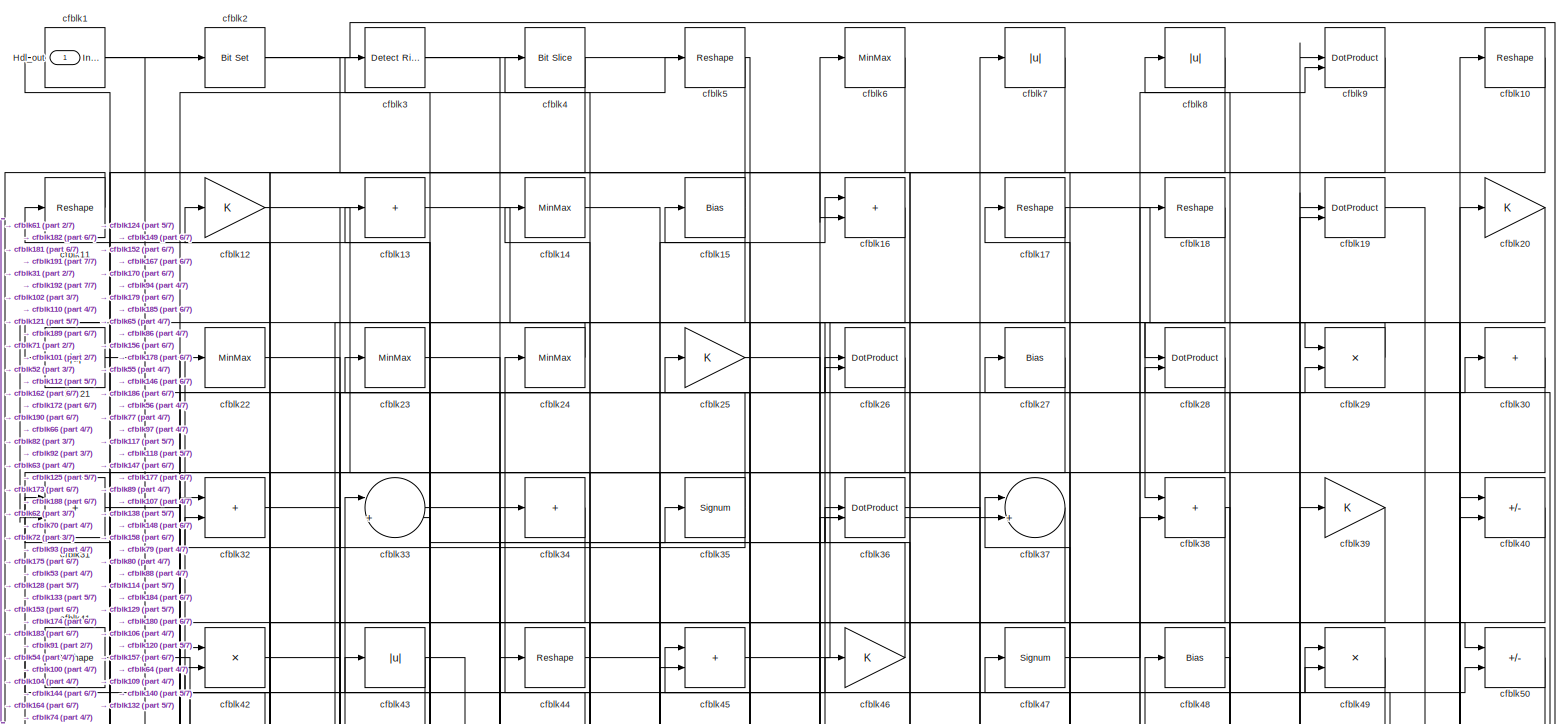
[diagram: root canvas - part 1/7, full width, top band]
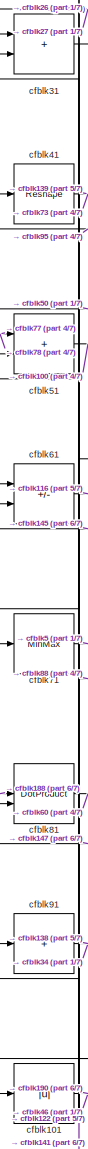
[diagram: root canvas - part 2/7, middle left region]
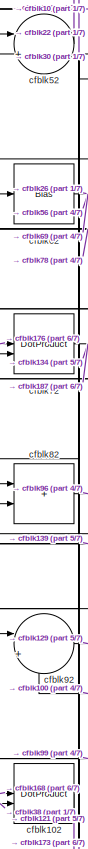
[diagram: root canvas - part 3/7, middle left region]
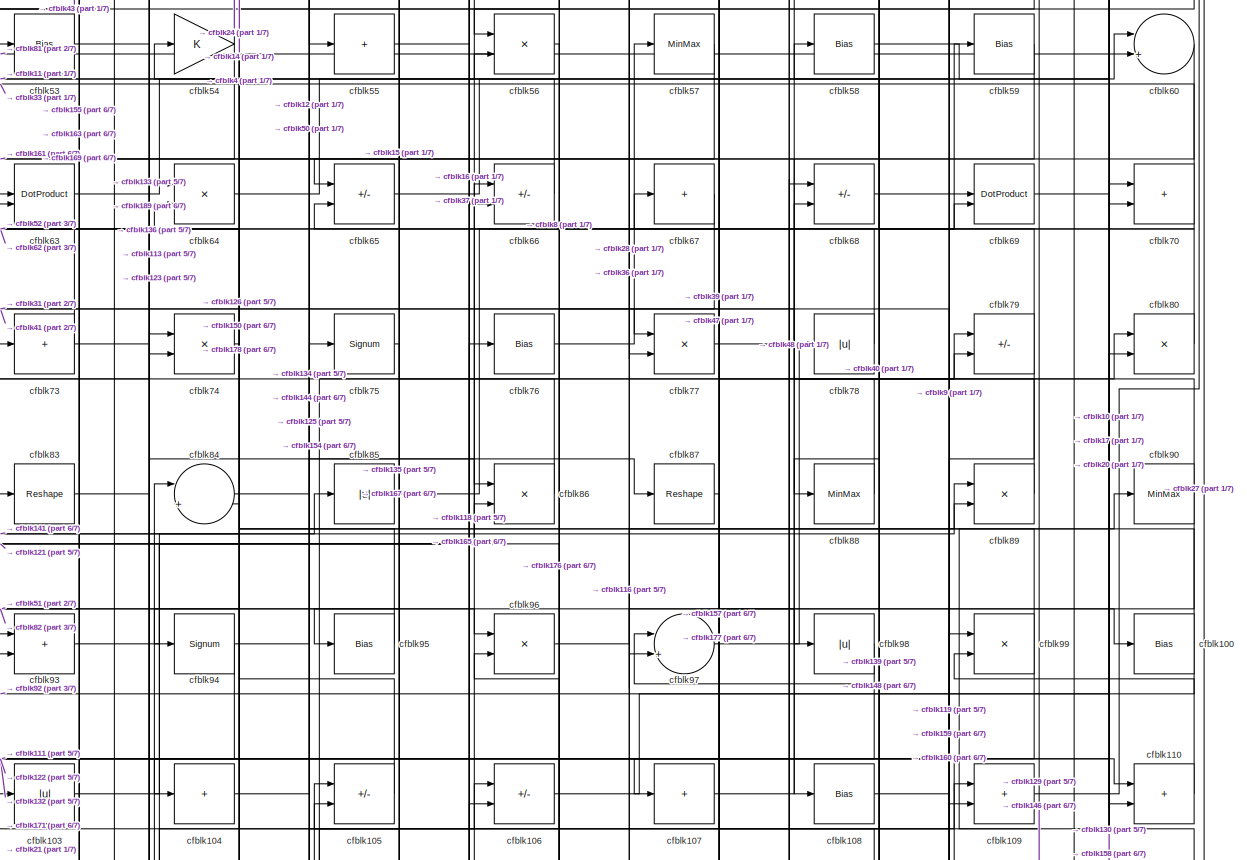
[diagram: root canvas - part 4/7, full width, middle band]
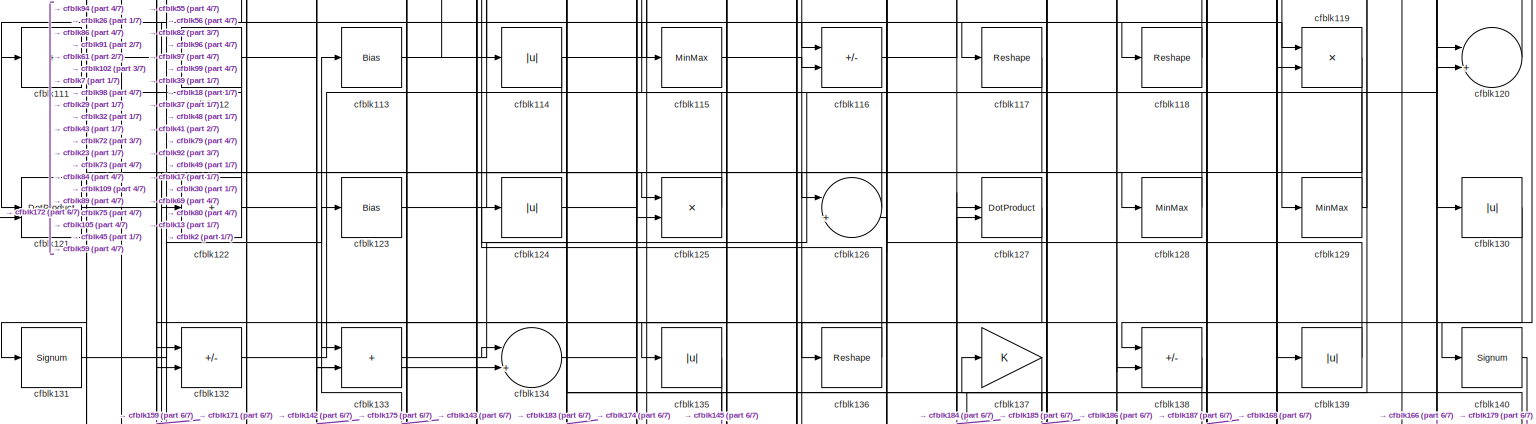
[diagram: root canvas - part 5/7, full width, middle band]
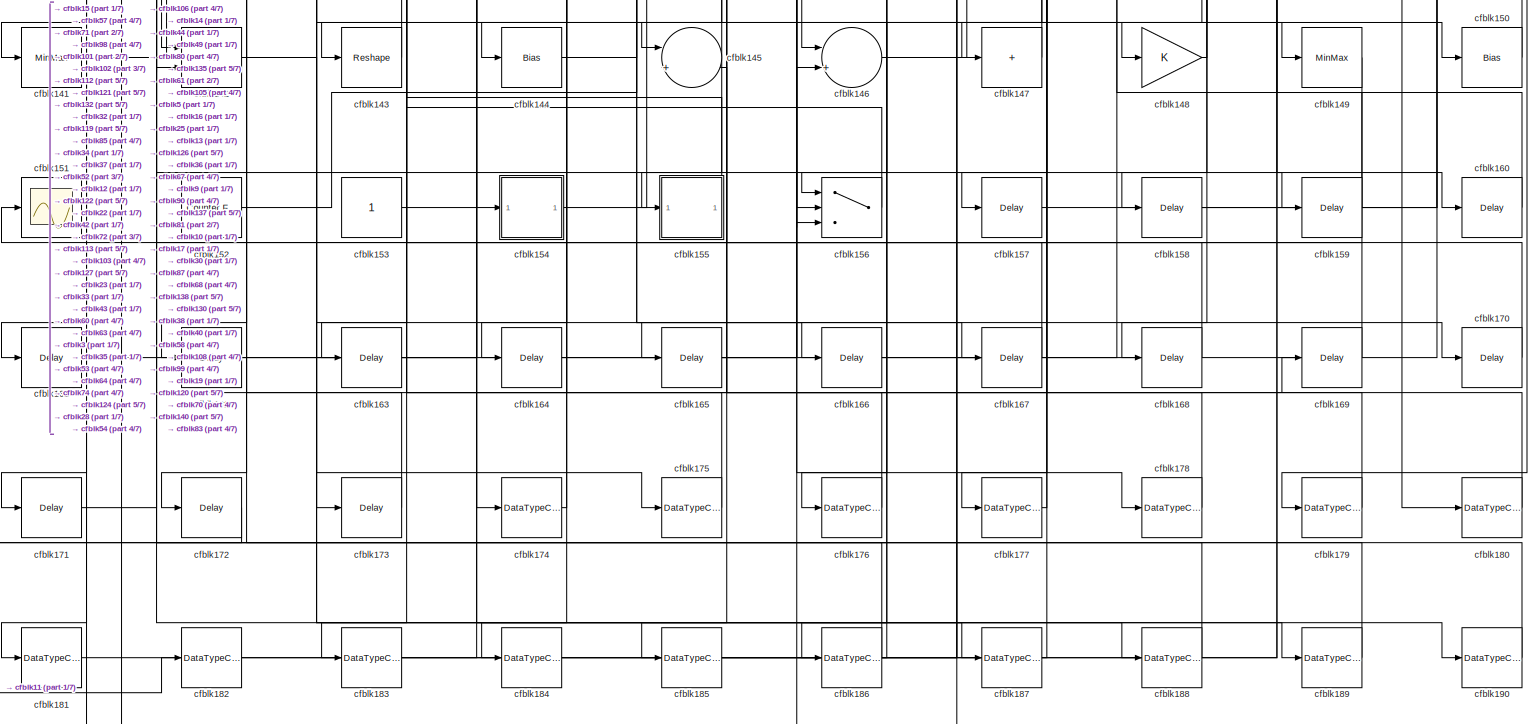
[diagram: root canvas - part 6/7, full width, bottom band]
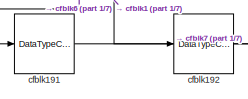
[diagram: root canvas - part 7/7, bottom left region]
MODEL slx_e7036787bcf7
KIND model
CONFIG AbsTol = auto
CONFIG EnableMultiTasking = off
CONFIG FixedStep = auto
CONFIG MaxStep = auto
CONFIG MinStep = auto
CONFIG RelTol = 1e-3
CONFIG SampleTimeConstraint = Unconstrained
CONFIG SolverName = VariableStepAuto
CONFIG StartTime = 0.0
CONFIG StopTime = 10.0
BLOCK [Outport] Hdl_out
  OutDataTypeStr = uint8
BLOCK [Reference] cfblk1  REF=simulink/Logic and Bit
Operations/Detect
Increase
  LibrarySourceBlock = hdlsllib/Logic and Bit\nOperations/Detect\nIncrease
  SourceBlock = simulink/Logic and Bit\nOperations/Detect\nIncrease
  SourceType = Detect Increase
BLOCK [Reshape] cfblk10
BLOCK [Bias] cfblk100
  Bias = 0.0
  SaturateOnIntegerOverflow = off
BLOCK [Abs] cfblk101
  OutDataTypeStr = uint8
  SaturateOnIntegerOverflow = off
BLOCK [DotProduct] cfblk102
  OutDataTypeStr = uint8
BLOCK [Abs] cfblk103
  OutDataTypeStr = uint8
  SaturateOnIntegerOverflow = off
BLOCK [Sum] cfblk104
  IconShape = rectangular
  Inputs = +
  OutDataTypeStr = uint8
BLOCK [Sum] cfblk105
  IconShape = rectangular
  Inputs = +-
  OutDataTypeStr = uint8
BLOCK [Sum] cfblk106
  IconShape = rectangular
  Inputs = +-
  OutDataTypeStr = uint8
BLOCK [Sum] cfblk107
  IconShape = rectangular
  Inputs = +
  OutDataTypeStr = uint8
BLOCK [Bias] cfblk108
  Bias = 0.0
  SaturateOnIntegerOverflow = off
BLOCK [Sum] cfblk109
  IconShape = rectangular
  OutDataTypeStr = uint8
BLOCK [Reshape] cfblk11
BLOCK [Sum] cfblk110
  IconShape = rectangular
  OutDataTypeStr = uint8
BLOCK [Sum] cfblk111
  IconShape = rectangular
  Inputs = +
  OutDataTypeStr = uint8
BLOCK [Sum] cfblk112
  IconShape = rectangular
  Inputs = +
  OutDataTypeStr = uint8
BLOCK [Bias] cfblk113
  Bias = 0.0
  SaturateOnIntegerOverflow = off
BLOCK [Abs] cfblk114
  OutDataTypeStr = uint8
  SaturateOnIntegerOverflow = off
BLOCK [MinMax] cfblk115
  OutDataTypeStr = uint8
BLOCK [Sum] cfblk116
  IconShape = rectangular
  Inputs = +-
  OutDataTypeStr = uint8
BLOCK [Reshape] cfblk117
BLOCK [Reshape] cfblk118
BLOCK [Product] cfblk119
  Inputs = */
  OutDataTypeStr = uint8
  RndMeth = Zero
  SaturateOnIntegerOverflow = on
BLOCK [Gain] cfblk12
  OutDataTypeStr = uint8
BLOCK [Sum] cfblk120
  Inputs = |++
  OutDataTypeStr = uint8
BLOCK [DotProduct] cfblk121
  OutDataTypeStr = uint8
BLOCK [Sum] cfblk122
  IconShape = rectangular
  Inputs = +
  OutDataTypeStr = uint8
BLOCK [Bias] cfblk123
  Bias = 0.0
  SaturateOnIntegerOverflow = off
BLOCK [Abs] cfblk124
  OutDataTypeStr = uint8
  SaturateOnIntegerOverflow = off
BLOCK [Product] cfblk125
  Inputs = */
  OutDataTypeStr = uint8
  RndMeth = Zero
  SaturateOnIntegerOverflow = on
BLOCK [Sum] cfblk126
  Inputs = |++
  OutDataTypeStr = uint8
BLOCK [DotProduct] cfblk127
  OutDataTypeStr = uint8
BLOCK [MinMax] cfblk128
  OutDataTypeStr = uint8
BLOCK [MinMax] cfblk129
  OutDataTypeStr = uint8
BLOCK [Sum] cfblk13
  IconShape = rectangular
  Inputs = +
  OutDataTypeStr = uint8
BLOCK [Abs] cfblk130
  OutDataTypeStr = uint8
  SaturateOnIntegerOverflow = off
BLOCK [Signum] cfblk131
BLOCK [Sum] cfblk132
  IconShape = rectangular
  Inputs = +-
  OutDataTypeStr = uint8
BLOCK [Sum] cfblk133
  IconShape = rectangular
  OutDataTypeStr = uint8
BLOCK [Sum] cfblk134
  Inputs = |++
  OutDataTypeStr = uint8
BLOCK [Abs] cfblk135
  OutDataTypeStr = uint8
  SaturateOnIntegerOverflow = off
BLOCK [Reshape] cfblk136
BLOCK [Gain] cfblk137
  OutDataTypeStr = uint8
BLOCK [Sum] cfblk138
  IconShape = rectangular
  Inputs = +-
  OutDataTypeStr = uint8
BLOCK [Abs] cfblk139
  OutDataTypeStr = uint8
  SaturateOnIntegerOverflow = off
BLOCK [MinMax] cfblk14
  OutDataTypeStr = uint8
BLOCK [Signum] cfblk140
BLOCK [MinMax] cfblk141
  OutDataTypeStr = uint8
BLOCK [Product] cfblk142
  Inputs = */
  OutDataTypeStr = uint8
  RndMeth = Zero
  SaturateOnIntegerOverflow = on
BLOCK [Reshape] cfblk143
BLOCK [Bias] cfblk144
  Bias = 0.0
  SaturateOnIntegerOverflow = off
BLOCK [Sum] cfblk145
  Inputs = |++
  OutDataTypeStr = uint8
BLOCK [Sum] cfblk146
  Inputs = |++
  OutDataTypeStr = uint8
BLOCK [Sum] cfblk147
  IconShape = rectangular
  Inputs = +
  OutDataTypeStr = uint8
BLOCK [Gain] cfblk148
  OutDataTypeStr = uint8
BLOCK [MinMax] cfblk149
  OutDataTypeStr = uint8
BLOCK [Bias] cfblk15
  Bias = 0.0
  SaturateOnIntegerOverflow = off
BLOCK [Bias] cfblk150
  Bias = 0.0
  SaturateOnIntegerOverflow = off
BLOCK [Scope] cfblk151
  Floating = off
  NumInputPorts = 1
  ScopeSpecificationString = Simulink.scopes.TimeScopeBlockCfg('CurrentConfiguration', extmgr.ConfigurationSet(extmgr.Configuration('Core','General UI',true),extmgr.Configuration('Core','Source UI',true),extmgr.Configuration('Sources','WiredSimulink',true,'DataLoggingVariableName','ScopeData2','DataLoggingSaveFormat','Array','DataLoggingLimitDataPoints',true,'DataLoggingDecimation','1'),extmgr.Configuration('Visuals','Time Do...<+868ch>
BLOCK [Reference] cfblk152  REF=hdlsllib/Sources/Counter
Free-Running
  SourceBlock = hdlsllib/Sources/Counter\nFree-Running
  SourceType = Counter Free-Running
BLOCK [Constant] cfblk153
  OutDataTypeStr = uint8
  SampleTime = -1
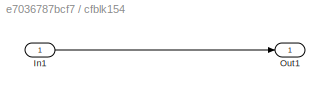
BLOCK [SubSystem] cfblk154
  LibrarySourceBlock = hdlsllib/Ports &\nSubsystems/Subsystem
BLOCK [Inport] cfblk154/In1
BLOCK [Outport] cfblk154/Out1
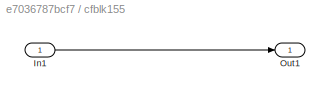
BLOCK [SubSystem] cfblk155
  LibrarySourceBlock = hdlsllib/Ports &\nSubsystems/Subsystem
BLOCK [Inport] cfblk155/In1
BLOCK [Outport] cfblk155/Out1
BLOCK [Switch] cfblk156
  InputSameDT = off
  OutDataTypeStr = uint8
  SaturateOnIntegerOverflow = off
BLOCK [Delay] cfblk157
  InputPortMap = u0
  SampleTime = 1
BLOCK [Delay] cfblk158
  InputPortMap = u0
  SampleTime = 1
BLOCK [Delay] cfblk159
  InputPortMap = u0
  SampleTime = 1
BLOCK [Sum] cfblk16
  IconShape = rectangular
  OutDataTypeStr = uint8
BLOCK [Delay] cfblk160
  InputPortMap = u0
  SampleTime = 1
BLOCK [Delay] cfblk161
  InputPortMap = u0
  SampleTime = 1
BLOCK [Delay] cfblk162
  InputPortMap = u0
  SampleTime = 1
BLOCK [Delay] cfblk163
  InputPortMap = u0
  SampleTime = 1
BLOCK [Delay] cfblk164
  InputPortMap = u0
  SampleTime = 1
BLOCK [Delay] cfblk165
  InputPortMap = u0
  SampleTime = 1
BLOCK [Delay] cfblk166
  InputPortMap = u0
  SampleTime = 1
BLOCK [Delay] cfblk167
  InputPortMap = u0
  SampleTime = 1
BLOCK [Delay] cfblk168
  InputPortMap = u0
  SampleTime = 1
BLOCK [Delay] cfblk169
  InputPortMap = u0
  SampleTime = 1
BLOCK [Reshape] cfblk17
BLOCK [Delay] cfblk170
  InputPortMap = u0
  SampleTime = 1
BLOCK [Delay] cfblk171
  InputPortMap = u0
  SampleTime = 1
BLOCK [Delay] cfblk172
  InputPortMap = u0
  SampleTime = 1
BLOCK [Delay] cfblk173
  InputPortMap = u0
  SampleTime = 1
BLOCK [DataTypeConversion] cfblk174
  OutDataTypeStr = uint8
  RndMeth = Floor
  SaturateOnIntegerOverflow = off
BLOCK [DataTypeConversion] cfblk175
  OutDataTypeStr = uint8
  RndMeth = Floor
  SaturateOnIntegerOverflow = off
BLOCK [DataTypeConversion] cfblk176
  OutDataTypeStr = uint8
  RndMeth = Floor
  SaturateOnIntegerOverflow = off
BLOCK [DataTypeConversion] cfblk177
  OutDataTypeStr = uint8
  RndMeth = Floor
  SaturateOnIntegerOverflow = off
BLOCK [DataTypeConversion] cfblk178
  OutDataTypeStr = uint8
  RndMeth = Floor
  SaturateOnIntegerOverflow = off
BLOCK [DataTypeConversion] cfblk179
  OutDataTypeStr = uint8
  RndMeth = Floor
  SaturateOnIntegerOverflow = off
BLOCK [Reshape] cfblk18
BLOCK [DataTypeConversion] cfblk180
  OutDataTypeStr = uint8
  RndMeth = Floor
  SaturateOnIntegerOverflow = off
BLOCK [DataTypeConversion] cfblk181
  OutDataTypeStr = uint8
  RndMeth = Floor
  SaturateOnIntegerOverflow = off
BLOCK [DataTypeConversion] cfblk182
  OutDataTypeStr = uint8
  RndMeth = Floor
  SaturateOnIntegerOverflow = off
BLOCK [DataTypeConversion] cfblk183
  OutDataTypeStr = uint8
  RndMeth = Floor
  SaturateOnIntegerOverflow = off
BLOCK [DataTypeConversion] cfblk184
  OutDataTypeStr = uint8
  RndMeth = Floor
  SaturateOnIntegerOverflow = off
BLOCK [DataTypeConversion] cfblk185
  OutDataTypeStr = uint8
  RndMeth = Floor
  SaturateOnIntegerOverflow = off
BLOCK [DataTypeConversion] cfblk186
  OutDataTypeStr = uint8
  RndMeth = Floor
  SaturateOnIntegerOverflow = off
BLOCK [DataTypeConversion] cfblk187
  OutDataTypeStr = uint8
  RndMeth = Floor
  SaturateOnIntegerOverflow = off
BLOCK [DataTypeConversion] cfblk188
  OutDataTypeStr = uint8
  RndMeth = Floor
  SaturateOnIntegerOverflow = off
BLOCK [DataTypeConversion] cfblk189
  OutDataTypeStr = uint8
  RndMeth = Floor
  SaturateOnIntegerOverflow = off
BLOCK [DotProduct] cfblk19
  OutDataTypeStr = uint8
BLOCK [DataTypeConversion] cfblk190
  OutDataTypeStr = uint8
  RndMeth = Floor
  SaturateOnIntegerOverflow = off
BLOCK [DataTypeConversion] cfblk191
  OutDataTypeStr = uint8
  RndMeth = Floor
  SaturateOnIntegerOverflow = off
BLOCK [DataTypeConversion] cfblk192
  OutDataTypeStr = uint8
  RndMeth = Floor
  SaturateOnIntegerOverflow = off
BLOCK [Reference] cfblk2  REF=simulink/Logic and Bit
Operations/Bit Set
  LibrarySourceBlock = hdlsllib/Logic and Bit\nOperations/Bit Set
  SourceBlock = simulink/Logic and Bit\nOperations/Bit Set
  SourceType = Bit Set
BLOCK [Gain] cfblk20
  OutDataTypeStr = uint8
BLOCK [Abs] cfblk21
  OutDataTypeStr = uint8
  SaturateOnIntegerOverflow = off
BLOCK [MinMax] cfblk22
  OutDataTypeStr = uint8
BLOCK [MinMax] cfblk23
  OutDataTypeStr = uint8
BLOCK [MinMax] cfblk24
  OutDataTypeStr = uint8
BLOCK [Gain] cfblk25
  OutDataTypeStr = uint8
BLOCK [DotProduct] cfblk26
  OutDataTypeStr = uint8
BLOCK [Bias] cfblk27
  Bias = 0.0
  SaturateOnIntegerOverflow = off
BLOCK [DotProduct] cfblk28
  OutDataTypeStr = uint8
BLOCK [Product] cfblk29
  Inputs = */
  OutDataTypeStr = uint8
  RndMeth = Zero
  SaturateOnIntegerOverflow = on
BLOCK [Reference] cfblk3  REF=hdlsllib/Logic and Bit
Operations/Detect Rise
Nonnegative
  SourceBlock = hdlsllib/Logic and Bit\nOperations/Detect Rise\nNonnegative
  SourceType = Detect Rise Nonnegative
BLOCK [Sum] cfblk30
  IconShape = rectangular
  Inputs = +
  OutDataTypeStr = uint8
BLOCK [Sum] cfblk31
  IconShape = rectangular
  OutDataTypeStr = uint8
BLOCK [Sum] cfblk32
  IconShape = rectangular
  OutDataTypeStr = uint8
BLOCK [Sum] cfblk33
  Inputs = |++
  OutDataTypeStr = uint8
BLOCK [Sum] cfblk34
  IconShape = rectangular
  Inputs = +
  OutDataTypeStr = uint8
BLOCK [Signum] cfblk35
BLOCK [DotProduct] cfblk36
  OutDataTypeStr = uint8
BLOCK [Sum] cfblk37
  Inputs = |++
  OutDataTypeStr = uint8
BLOCK [Sum] cfblk38
  IconShape = rectangular
  OutDataTypeStr = uint8
BLOCK [Gain] cfblk39
  OutDataTypeStr = uint8
BLOCK [Reference] cfblk4  REF=hdlsllib/Logic and Bit
Operations/Bit Slice
  SourceBlock = hdlsllib/Logic and Bit\nOperations/Bit Slice
  SourceType = Bit Slice
BLOCK [Sum] cfblk40
  IconShape = rectangular
  Inputs = +-
  OutDataTypeStr = uint8
BLOCK [Reshape] cfblk41
BLOCK [Product] cfblk42
  Inputs = */
  OutDataTypeStr = uint8
  RndMeth = Zero
  SaturateOnIntegerOverflow = on
BLOCK [Abs] cfblk43
  OutDataTypeStr = uint8
  SaturateOnIntegerOverflow = off
BLOCK [Reshape] cfblk44
BLOCK [Sum] cfblk45
  IconShape = rectangular
  OutDataTypeStr = uint8
BLOCK [Gain] cfblk46
  OutDataTypeStr = uint8
BLOCK [Signum] cfblk47
BLOCK [Bias] cfblk48
  Bias = 0.0
  SaturateOnIntegerOverflow = off
BLOCK [Product] cfblk49
  Inputs = */
  OutDataTypeStr = uint8
  RndMeth = Zero
  SaturateOnIntegerOverflow = on
BLOCK [Reshape] cfblk5
BLOCK [Sum] cfblk50
  IconShape = rectangular
  Inputs = +-
  OutDataTypeStr = uint8
BLOCK [Sum] cfblk51
  IconShape = rectangular
  OutDataTypeStr = uint8
BLOCK [Sum] cfblk52
  Inputs = |++
  OutDataTypeStr = uint8
BLOCK [Bias] cfblk53
  Bias = 0.0
  SaturateOnIntegerOverflow = off
BLOCK [Gain] cfblk54
  OutDataTypeStr = uint8
BLOCK [Sum] cfblk55
  IconShape = rectangular
  Inputs = +
  OutDataTypeStr = uint8
BLOCK [Product] cfblk56
  Inputs = */
  OutDataTypeStr = uint8
  RndMeth = Zero
  SaturateOnIntegerOverflow = on
BLOCK [MinMax] cfblk57
  OutDataTypeStr = uint8
BLOCK [Bias] cfblk58
  Bias = 0.0
  SaturateOnIntegerOverflow = off
BLOCK [Bias] cfblk59
  Bias = 0.0
  SaturateOnIntegerOverflow = off
BLOCK [MinMax] cfblk6
  OutDataTypeStr = uint8
BLOCK [Sum] cfblk60
  Inputs = |++
  OutDataTypeStr = uint8
BLOCK [Sum] cfblk61
  IconShape = rectangular
  Inputs = +-
  OutDataTypeStr = uint8
BLOCK [Bias] cfblk62
  Bias = 0.0
  SaturateOnIntegerOverflow = off
BLOCK [DotProduct] cfblk63
  OutDataTypeStr = uint8
BLOCK [Product] cfblk64
  Inputs = */
  OutDataTypeStr = uint8
  RndMeth = Zero
  SaturateOnIntegerOverflow = on
BLOCK [Sum] cfblk65
  IconShape = rectangular
  Inputs = +-
  OutDataTypeStr = uint8
BLOCK [Sum] cfblk66
  IconShape = rectangular
  Inputs = +-
  OutDataTypeStr = uint8
BLOCK [Sum] cfblk67
  IconShape = rectangular
  Inputs = +
  OutDataTypeStr = uint8
BLOCK [Sum] cfblk68
  IconShape = rectangular
  Inputs = +-
  OutDataTypeStr = uint8
BLOCK [DotProduct] cfblk69
  OutDataTypeStr = uint8
BLOCK [Abs] cfblk7
  OutDataTypeStr = uint8
  SaturateOnIntegerOverflow = off
BLOCK [Sum] cfblk70
  IconShape = rectangular
  OutDataTypeStr = uint8
BLOCK [MinMax] cfblk71
  OutDataTypeStr = uint8
BLOCK [DotProduct] cfblk72
  OutDataTypeStr = uint8
BLOCK [Sum] cfblk73
  IconShape = rectangular
  Inputs = +
  OutDataTypeStr = uint8
BLOCK [Product] cfblk74
  Inputs = */
  OutDataTypeStr = uint8
  RndMeth = Zero
  SaturateOnIntegerOverflow = on
BLOCK [Signum] cfblk75
BLOCK [Bias] cfblk76
  Bias = 0.0
  SaturateOnIntegerOverflow = off
BLOCK [Product] cfblk77
  Inputs = */
  OutDataTypeStr = uint8
  RndMeth = Zero
  SaturateOnIntegerOverflow = on
BLOCK [Abs] cfblk78
  OutDataTypeStr = uint8
  SaturateOnIntegerOverflow = off
BLOCK [Sum] cfblk79
  IconShape = rectangular
  Inputs = +-
  OutDataTypeStr = uint8
BLOCK [Abs] cfblk8
  OutDataTypeStr = uint8
  SaturateOnIntegerOverflow = off
BLOCK [Product] cfblk80
  Inputs = */
  OutDataTypeStr = uint8
  RndMeth = Zero
  SaturateOnIntegerOverflow = on
BLOCK [DotProduct] cfblk81
  OutDataTypeStr = uint8
BLOCK [Sum] cfblk82
  IconShape = rectangular
  OutDataTypeStr = uint8
BLOCK [Reshape] cfblk83
BLOCK [Sum] cfblk84
  Inputs = |++
  OutDataTypeStr = uint8
BLOCK [Abs] cfblk85
  OutDataTypeStr = uint8
  SaturateOnIntegerOverflow = off
BLOCK [Product] cfblk86
  Inputs = */
  OutDataTypeStr = uint8
  RndMeth = Zero
  SaturateOnIntegerOverflow = on
BLOCK [Reshape] cfblk87
BLOCK [MinMax] cfblk88
  OutDataTypeStr = uint8
BLOCK [Product] cfblk89
  Inputs = */
  OutDataTypeStr = uint8
  RndMeth = Zero
  SaturateOnIntegerOverflow = on
BLOCK [DotProduct] cfblk9
  OutDataTypeStr = uint8
BLOCK [MinMax] cfblk90
  OutDataTypeStr = uint8
BLOCK [Sum] cfblk91
  IconShape = rectangular
  Inputs = +
  OutDataTypeStr = uint8
BLOCK [Sum] cfblk92
  Inputs = |++
  OutDataTypeStr = uint8
BLOCK [Sum] cfblk93
  IconShape = rectangular
  OutDataTypeStr = uint8
BLOCK [Signum] cfblk94
BLOCK [Bias] cfblk95
  Bias = 0.0
  SaturateOnIntegerOverflow = off
BLOCK [Product] cfblk96
  Inputs = */
  OutDataTypeStr = uint8
  RndMeth = Zero
  SaturateOnIntegerOverflow = on
BLOCK [Sum] cfblk97
  Inputs = |++
  OutDataTypeStr = uint8
BLOCK [Abs] cfblk98
  OutDataTypeStr = uint8
  SaturateOnIntegerOverflow = off
BLOCK [Product] cfblk99
  Inputs = */
  OutDataTypeStr = uint8
  RndMeth = Zero
  SaturateOnIntegerOverflow = on
NET cfblk100:1 -> cfblk14:1, cfblk92:2
NET cfblk101:1 -> cfblk190:1, cfblk46:1
LINE cfblk102:1 -> cfblk121:1
LINE cfblk103:1 -> cfblk76:1
LINE cfblk104:1 -> cfblk16:1
LINE cfblk105:1 -> cfblk64:2
LINE cfblk106:1 -> cfblk20:1
LINE cfblk107:1 -> cfblk48:1
LINE cfblk108:1 -> cfblk160:1
LINE cfblk109:1 -> cfblk27:1
NET cfblk10:1 -> cfblk177:1, cfblk82:1
LINE cfblk110:1 -> cfblk99:2
LINE cfblk111:1 -> cfblk119:1
NET cfblk112:1 -> cfblk115:1, cfblk142:2, cfblk29:2
LINE cfblk113:1 -> cfblk109:1
NET cfblk114:1 -> cfblk133:1, cfblk39:1
LINE cfblk115:1 -> cfblk116:2
LINE cfblk116:1 -> cfblk89:2
LINE cfblk117:1 -> cfblk131:1
LINE cfblk118:1 -> cfblk37:1
LINE cfblk119:1 -> cfblk142:1
LINE cfblk11:1 -> cfblk182:1
LINE cfblk120:1 -> cfblk13:1
NET cfblk121:1 -> cfblk159:1, cfblk26:2, cfblk86:2
NET cfblk122:1 -> cfblk175:1, cfblk91:1
LINE cfblk123:1 -> cfblk89:1
LINE cfblk124:1 -> cfblk45:2
LINE cfblk125:1 -> cfblk105:1
LINE cfblk126:1 -> cfblk84:2
LINE cfblk127:1 -> cfblk183:1
LINE cfblk128:1 -> cfblk45:1
NET cfblk129:1 -> cfblk49:2, cfblk96:2
NET cfblk12:1 -> cfblk149:1, cfblk55:1
LINE cfblk130:1 -> cfblk168:1
LINE cfblk131:1 -> cfblk123:1
LINE cfblk132:1 -> cfblk18:1
NET cfblk133:1 -> cfblk134:1, cfblk30:1, cfblk80:2
LINE cfblk134:1 -> cfblk75:1
LINE cfblk135:1 -> cfblk145:1
LINE cfblk136:1 -> cfblk84:1
LINE cfblk137:1 -> cfblk186:1
LINE cfblk138:1 -> cfblk143:1
NET cfblk139:1 -> cfblk82:2, cfblk97:1
LINE cfblk13:1 -> cfblk146:1
LINE cfblk140:1 -> cfblk179:1
LINE cfblk141:1 -> cfblk85:1
NET cfblk142:1 -> cfblk165:1, cfblk166:1
LINE cfblk143:1 -> cfblk113:1
LINE cfblk144:1 -> cfblk106:1
NET cfblk145:1 -> cfblk155:1, cfblk61:2
LINE cfblk146:1 -> cfblk90:1
LINE cfblk147:1 -> cfblk81:2
LINE cfblk148:1 -> cfblk58:1
LINE cfblk149:1 -> cfblk151:1
LINE cfblk14:1 -> cfblk170:1
LINE cfblk150:1 -> cfblk83:1
LINE cfblk152:1 -> cfblk49:1
NET cfblk153:1 -> cfblk154:1, cfblk35:1
LINE cfblk154/In1:1 -> cfblk154/Out1:1
LINE cfblk154:1 -> cfblk80:1
LINE cfblk155/In1:1 -> cfblk155/Out1:1
LINE cfblk155:1 -> cfblk103:1
LINE cfblk156:1 -> cfblk23:1
LINE cfblk157:1 -> cfblk40:1
LINE cfblk158:1 -> cfblk70:1
LINE cfblk159:1 -> cfblk99:1
NET cfblk15:1 -> Hdl_out:1, cfblk181:1, cfblk31:2
LINE cfblk160:1 -> cfblk68:1
LINE cfblk161:1 -> cfblk74:1
LINE cfblk162:1 -> cfblk38:2
LINE cfblk163:1 -> cfblk64:1
LINE cfblk164:1 -> cfblk146:2
LINE cfblk165:1 -> cfblk106:2
LINE cfblk166:1 -> cfblk120:2
LINE cfblk167:1 -> cfblk105:2
LINE cfblk168:1 -> cfblk102:1
LINE cfblk169:1 -> cfblk63:2
NET cfblk16:1 -> cfblk156:2, cfblk66:2
LINE cfblk170:1 -> cfblk33:2
LINE cfblk171:1 -> cfblk132:1
LINE cfblk172:1 -> cfblk121:2
LINE cfblk173:1 -> cfblk52:2
LINE cfblk174:1 -> cfblk124:1
LINE cfblk175:1 -> cfblk3:1
LINE cfblk176:1 -> cfblk72:1
LINE cfblk177:1 -> cfblk67:1
NET cfblk178:1 -> cfblk43:1, cfblk54:1
LINE cfblk179:1 -> cfblk25:1
NET cfblk17:1 -> cfblk120:1, cfblk53:1
NET cfblk180:1 -> cfblk145:2, cfblk169:1, cfblk17:1
LINE cfblk181:1 -> cfblk19:1
LINE cfblk182:1 -> cfblk19:2
LINE cfblk183:1 -> cfblk44:1
LINE cfblk184:1 -> cfblk127:1
LINE cfblk185:1 -> cfblk127:2
NET cfblk186:1 -> cfblk126:2, cfblk32:1, cfblk36:2
LINE cfblk187:1 -> cfblk137:1
LINE cfblk188:1 -> cfblk81:1
LINE cfblk189:1 -> cfblk42:1
LINE cfblk18:1 -> cfblk38:1
LINE cfblk190:1 -> cfblk42:2
LINE cfblk191:1 -> cfblk7:1
LINE cfblk192:1 -> cfblk6:1
LINE cfblk19:1 -> cfblk180:1
NET cfblk1:1 -> cfblk192:1, cfblk2:1
NET cfblk20:1 -> cfblk65:1, cfblk70:2
LINE cfblk21:1 -> cfblk110:1
LINE cfblk22:1 -> cfblk173:1
LINE cfblk23:1 -> cfblk128:1
LINE cfblk24:1 -> cfblk63:1
LINE cfblk25:1 -> cfblk178:1
LINE cfblk26:1 -> cfblk61:1
LINE cfblk27:1 -> cfblk71:1
NET cfblk28:1 -> cfblk164:1, cfblk77:2
LINE cfblk29:1 -> cfblk28:1
NET cfblk2:1 -> cfblk140:1, cfblk16:2
NET cfblk30:1 -> cfblk147:1, cfblk92:1
NET cfblk31:1 -> cfblk51:1, cfblk77:1, cfblk78:1
LINE cfblk32:1 -> cfblk125:1
LINE cfblk33:1 -> cfblk74:2
LINE cfblk34:1 -> cfblk172:1
NET cfblk35:1 -> cfblk1:1, cfblk32:2
LINE cfblk36:1 -> cfblk97:2
LINE cfblk37:1 -> cfblk162:1
NET cfblk38:1 -> cfblk102:2, cfblk158:1
NET cfblk39:1 -> cfblk104:1, cfblk117:1
LINE cfblk3:1 -> cfblk174:1
NET cfblk40:1 -> cfblk144:1, cfblk148:1, cfblk156:3, cfblk88:1
NET cfblk41:1 -> cfblk139:1, cfblk73:1
LINE cfblk42:1 -> cfblk188:1
NET cfblk43:1 -> cfblk114:1, cfblk133:2, cfblk72:2, cfblk93:1
NET cfblk44:1 -> cfblk167:1, cfblk36:1
LINE cfblk45:1 -> cfblk29:1
LINE cfblk46:1 -> cfblk12:1
NET cfblk47:1 -> cfblk50:1, cfblk9:2
LINE cfblk48:1 -> cfblk138:1
LINE cfblk49:1 -> cfblk184:1
LINE cfblk4:1 -> cfblk21:1
LINE cfblk50:1 -> cfblk101:1
LINE cfblk51:1 -> cfblk100:1
LINE cfblk52:1 -> cfblk22:1
LINE cfblk53:1 -> cfblk150:1
NET cfblk54:1 -> cfblk24:1, cfblk93:2
NET cfblk55:1 -> cfblk118:1, cfblk37:2
LINE cfblk56:1 -> cfblk126:1
LINE cfblk57:1 -> cfblk161:1
LINE cfblk58:1 -> cfblk60:1
NET cfblk59:1 -> cfblk108:1, cfblk135:1, cfblk94:1
LINE cfblk5:1 -> cfblk185:1
LINE cfblk60:1 -> cfblk163:1
LINE cfblk61:1 -> cfblk116:1
NET cfblk62:1 -> cfblk26:1, cfblk56:2, cfblk69:2
NET cfblk63:1 -> cfblk10:1, cfblk110:2
LINE cfblk64:1 -> cfblk40:2
LINE cfblk65:1 -> cfblk9:1
LINE cfblk66:1 -> cfblk11:1
LINE cfblk67:1 -> cfblk176:1
LINE cfblk68:1 -> cfblk59:1
LINE cfblk69:1 -> cfblk130:1
LINE cfblk6:1 -> cfblk191:1
NET cfblk70:1 -> cfblk33:1, cfblk65:2
NET cfblk71:1 -> cfblk141:1, cfblk5:1
NET cfblk72:1 -> cfblk134:2, cfblk187:1
NET cfblk73:1 -> cfblk125:2, cfblk31:1, cfblk86:1
LINE cfblk74:1 -> cfblk4:1
LINE cfblk75:1 -> cfblk95:1
LINE cfblk76:1 -> cfblk57:1
LINE cfblk77:1 -> cfblk79:2
LINE cfblk78:1 -> cfblk52:1
NET cfblk79:1 -> cfblk119:2, cfblk8:1
LINE cfblk7:1 -> cfblk112:1
LINE cfblk80:1 -> cfblk28:2
LINE cfblk81:1 -> cfblk60:2
LINE cfblk82:1 -> cfblk96:1
LINE cfblk83:1 -> cfblk189:1
LINE cfblk84:1 -> cfblk87:1
LINE cfblk85:1 -> cfblk69:1
LINE cfblk86:1 -> cfblk15:1
LINE cfblk87:1 -> cfblk157:1
LINE cfblk88:1 -> cfblk51:2
LINE cfblk89:1 -> cfblk47:1
LINE cfblk8:1 -> cfblk56:1
NET cfblk90:1 -> cfblk107:1, cfblk109:2, cfblk68:2
NET cfblk91:1 -> cfblk138:2, cfblk34:1
LINE cfblk92:1 -> cfblk129:1
LINE cfblk93:1 -> cfblk66:1
NET cfblk94:1 -> cfblk111:1, cfblk50:2
LINE cfblk95:1 -> cfblk41:1
LINE cfblk96:1 -> cfblk98:1
LINE cfblk97:1 -> cfblk79:1
NET cfblk98:1 -> cfblk122:1, cfblk171:1
NET cfblk99:1 -> cfblk132:2, cfblk136:1, cfblk62:1
LINE cfblk9:1 -> cfblk156:1
note: NET lines group one-source signal fan-out (src -> all destinations, sorted); 1:1 wires keep LINE
